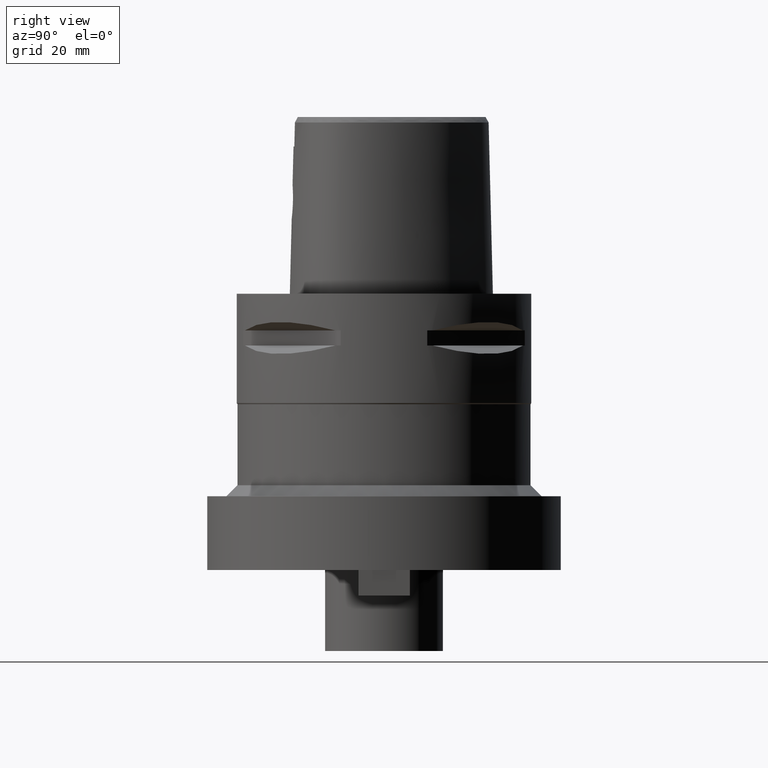
[diagram: clean part render]
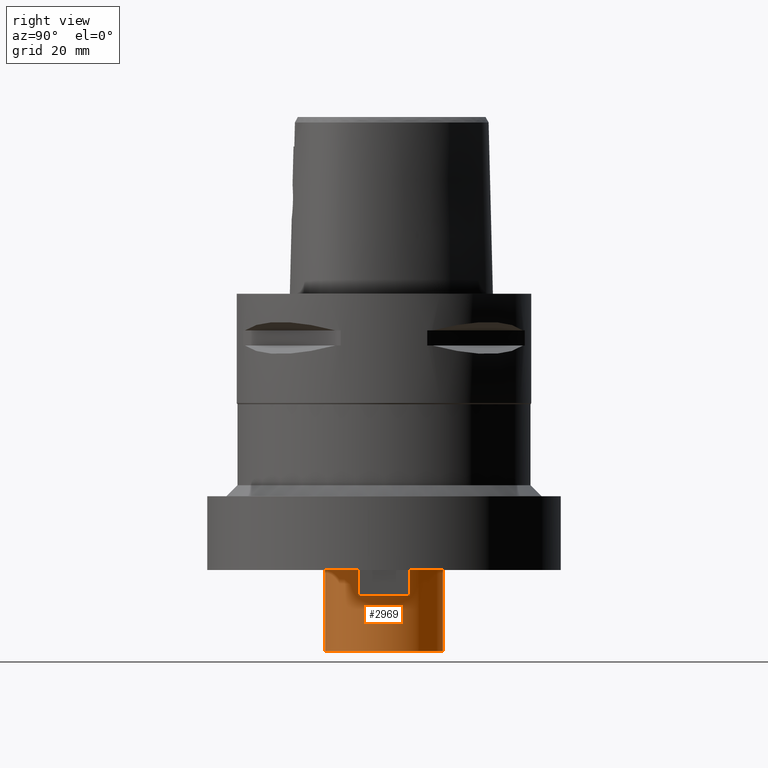
[diagram: same view with one face highlighted and labeled with its STEP entity id]
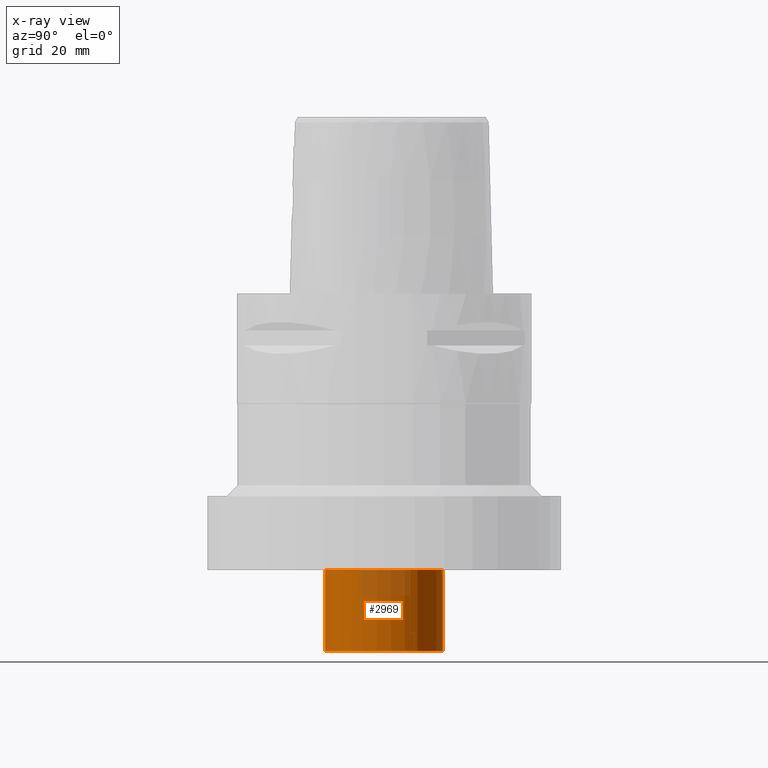
[diagram: x-ray of the same camera — body ghosted, the highlighted face saturated]
A machine part, right view. The second image highlights one B-rep face of the part: STEP entity #2969.
The next image is the same camera in x-ray: the body ghosted, the highlighted face saturated — about 14% of this face is hidden behind the body in this view.
In plain terms, the highlighted cylindrical surface (partial cylindrical patch) has radius 16 mm, axis along (0, 0, -1).
Its self-contained STEP definition (entity closure, byte-faithful):
#664=CARTESIAN_POINT('',(0.E0,1.284042168906E-14,-7.5E1));
#665=DIRECTION('',(0.E0,0.E0,-1.E0));
#666=DIRECTION('',(0.E0,1.E0,0.E0));
#667=AXIS2_PLACEMENT_3D('',#664,#665,#666);
#700=DIRECTION('',(0.E0,0.E0,-1.E0));
#701=VECTOR('',#700,2.2E1);
#702=CARTESIAN_POINT('',(0.E0,-1.6E1,-7.5E1));
#703=LINE('',#702,#701);
#707=DIRECTION('',(0.E0,0.E0,-1.E0));
#708=VECTOR('',#707,2.2E1);
#709=CARTESIAN_POINT('',(0.E0,1.6E1,-7.5E1));
#710=LINE('',#709,#708);
#714=CARTESIAN_POINT('',(0.E0,1.284042168906E-14,-9.7E1));
#715=DIRECTION('',(0.E0,0.E0,1.E0));
#716=DIRECTION('',(0.E0,-1.E0,0.E0));
#717=AXIS2_PLACEMENT_3D('',#714,#715,#716);
#1820=CARTESIAN_POINT('',(0.E0,-1.6E1,-7.5E1));
#1821=CARTESIAN_POINT('',(0.E0,1.6E1,-7.5E1));
#1822=VERTEX_POINT('',#1820);
#1823=VERTEX_POINT('',#1821);
#1840=CARTESIAN_POINT('',(0.E0,1.6E1,-9.7E1));
#1841=VERTEX_POINT('',#1840);
#1842=CARTESIAN_POINT('',(0.E0,-1.6E1,-9.7E1));
#1843=VERTEX_POINT('',#1842);
#2957=CARTESIAN_POINT('',(0.E0,1.284042168906E-14,4.85E0));
#2958=DIRECTION('',(0.E0,0.E0,-1.E0));
#2959=DIRECTION('',(0.E0,-1.E0,0.E0));
#2960=AXIS2_PLACEMENT_3D('',#2957,#2958,#2959);
#2961=CYLINDRICAL_SURFACE('',#2960,1.6E1);
#2962=ORIENTED_EDGE('',*,*,#2947,.T.);
#2964=ORIENTED_EDGE('',*,*,#2963,.F.);
#2965=ORIENTED_EDGE('',*,*,#2950,.F.);
#2966=ORIENTED_EDGE('',*,*,#2917,.F.);
#2967=EDGE_LOOP('',(#2962,#2964,#2965,#2966));
#2968=FACE_OUTER_BOUND('',#2967,.F.);
#668=CIRCLE('',#667,1.6E1);
#718=CIRCLE('',#717,1.6E1);
#2917=EDGE_CURVE('',#1823,#1822,#668,.T.);
#2947=EDGE_CURVE('',#1823,#1841,#710,.T.);
#2950=EDGE_CURVE('',#1822,#1843,#703,.T.);
#2963=EDGE_CURVE('',#1843,#1841,#718,.T.);
#2969=ADVANCED_FACE('',(#2968),#2961,.T.);